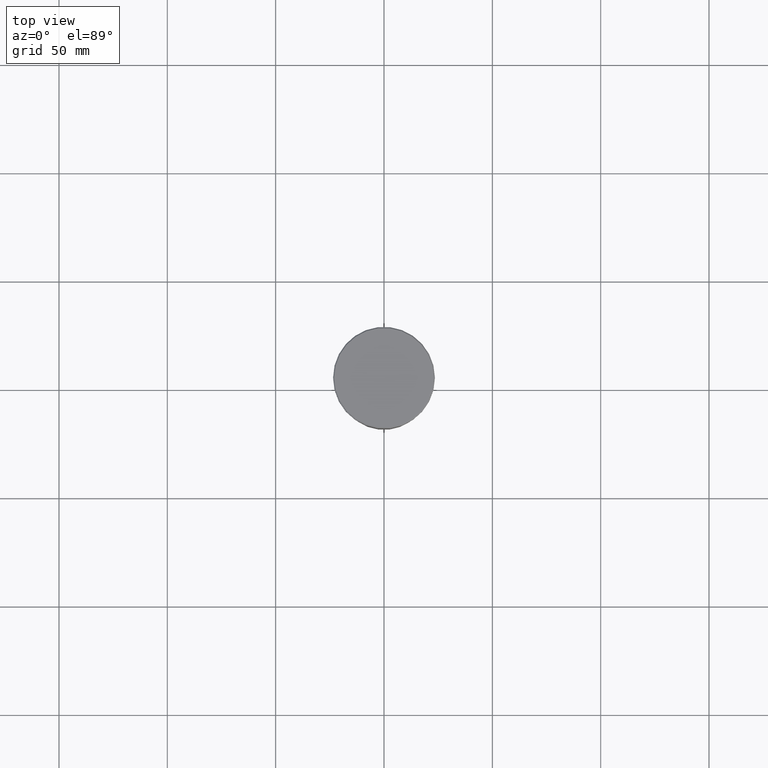
[diagram: clean part render]
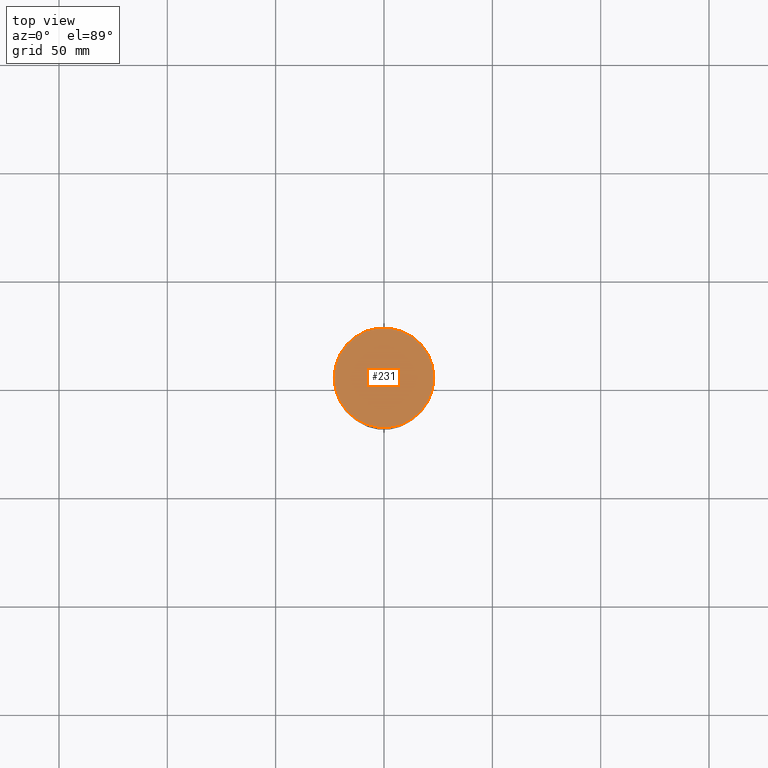
[diagram: same view with one face highlighted and labeled with its STEP entity id]
A machine part, top view. The second image highlights one B-rep face of the part: STEP entity #231.
In plain terms, the highlighted planar face has unit normal (0, -0, 1).
Its self-contained STEP definition (entity closure, byte-faithful):
#90 = FACE_OUTER_BOUND ( 'NONE', #950, .T. ) ;
#129 = ORIENTED_EDGE ( 'NONE', *, *, #437, .T. ) ;
#153 = CARTESIAN_POINT ( 'NONE',  ( -23.00000000000002487, 0.000000000000000000, 0.000000000000000000 ) ) ;
#231 = ADVANCED_FACE ( 'NONE', ( #90 ), #814, .T. ) ;
#264 = DIRECTION ( 'NONE',  ( 1.000000000000000000, 0.000000000000000000, 0.000000000000000000 ) ) ;
#286 = CIRCLE ( 'NONE', #766, 23.00000000000002487 ) ;
#437 = EDGE_CURVE ( 'NONE', #628, #994, #754, .T. ) ;
#458 = DIRECTION ( 'NONE',  ( 0.000000000000000000, -0.000000000000000000, 1.000000000000000000 ) ) ;
#461 = CARTESIAN_POINT ( 'NONE',  ( 0.000000000000000000, 0.000000000000000000, 0.000000000000000000 ) ) ;
#519 = CARTESIAN_POINT ( 'NONE',  ( 23.00000000000002487, 2.847303808017597717E-15, 0.000000000000000000 ) ) ;
#540 = DIRECTION ( 'NONE',  ( 1.000000000000000000, 0.000000000000000000, 0.000000000000000000 ) ) ;
#580 = DIRECTION ( 'NONE',  ( 1.000000000000000000, 0.000000000000000000, 0.000000000000000000 ) ) ;
#628 = VERTEX_POINT ( 'NONE', #153 ) ;
#656 = AXIS2_PLACEMENT_3D ( 'NONE', #704, #804, #264 ) ;
#704 = CARTESIAN_POINT ( 'NONE',  ( 0.000000000000000000, 0.000000000000000000, 0.000000000000000000 ) ) ;
#754 = CIRCLE ( 'NONE', #656, 23.00000000000002487 ) ;
#766 = AXIS2_PLACEMENT_3D ( 'NONE', #1102, #1114, #580 ) ;
#804 = DIRECTION ( 'NONE',  ( -0.000000000000000000, -0.000000000000000000, 1.000000000000000000 ) ) ;
#814 = PLANE ( 'NONE',  #1067 ) ;
#950 = EDGE_LOOP ( 'NONE', ( #129, #1172 ) ) ;
#979 = EDGE_CURVE ( 'NONE', #994, #628, #286, .T. ) ;
#994 = VERTEX_POINT ( 'NONE', #519 ) ;
#1067 = AXIS2_PLACEMENT_3D ( 'NONE', #461, #458, #540 ) ;
#1102 = CARTESIAN_POINT ( 'NONE',  ( 0.000000000000000000, 0.000000000000000000, 0.000000000000000000 ) ) ;
#1114 = DIRECTION ( 'NONE',  ( -0.000000000000000000, -0.000000000000000000, 1.000000000000000000 ) ) ;
#1172 = ORIENTED_EDGE ( 'NONE', *, *, #979, .T. ) ;